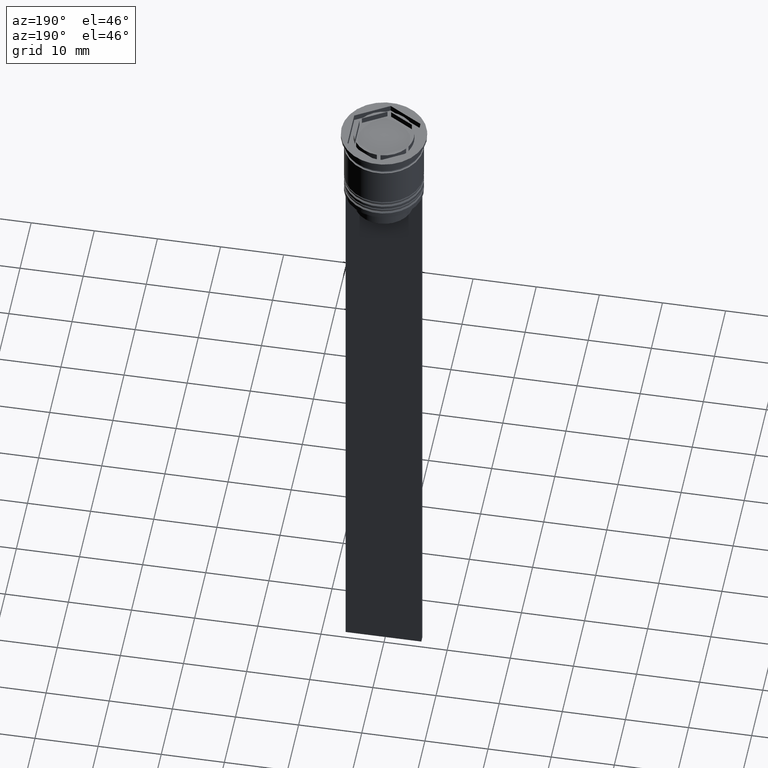
[diagram: clean part render]
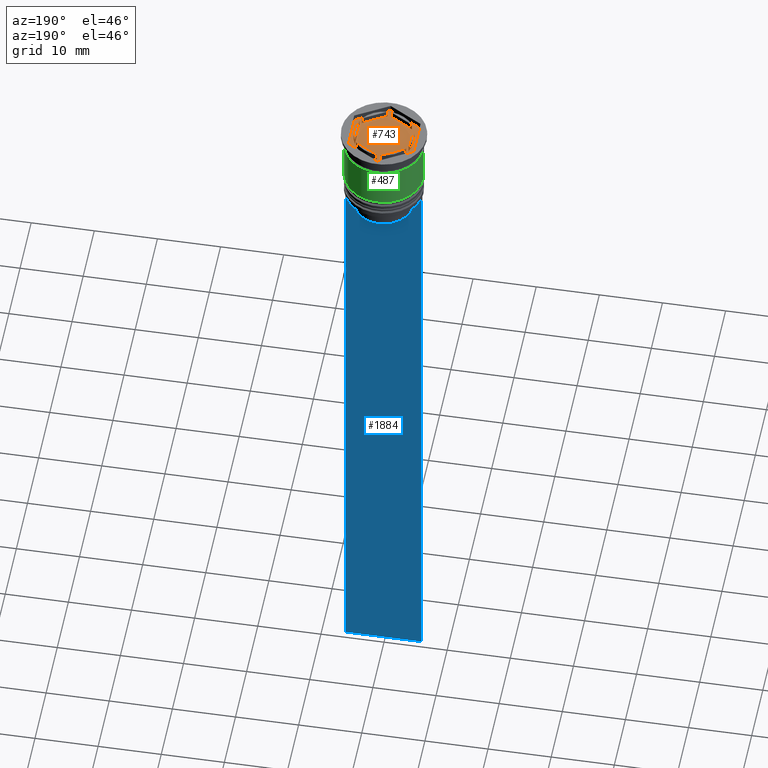
[diagram: same view with three faces highlighted in distinct colors, each labeled with its STEP entity id]
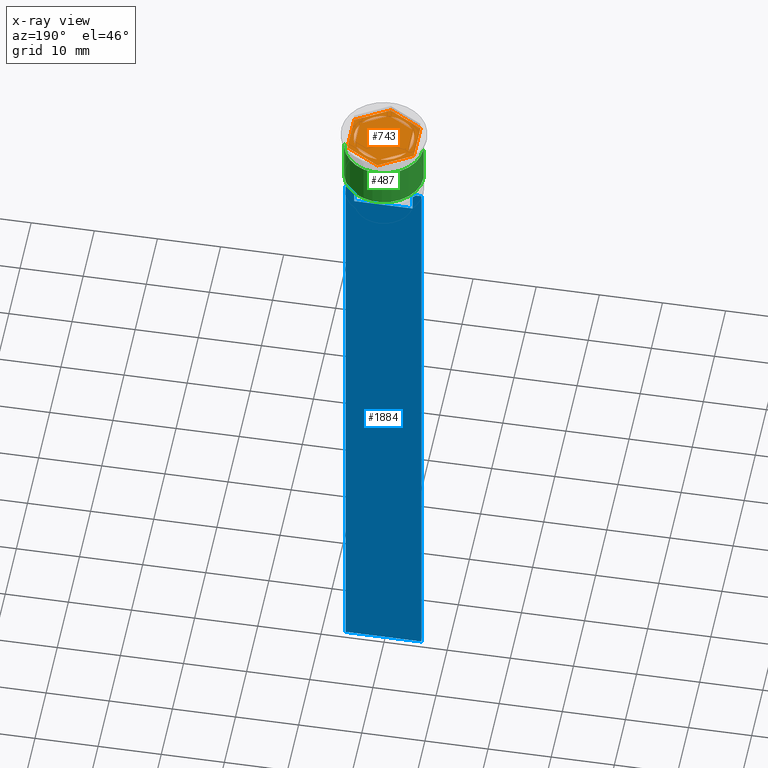
[diagram: x-ray of the same camera — body ghosted, the three highlighted faces saturated]
A machine part, auxiliary view with three faces highlighted in distinct colors.
The next image is the same camera in x-ray (body ghosted, the three faces saturated) — at least one of them is partly hidden behind the body in this view.
Their STEP definitions:

[orange] entity #743 — the highlighted planar face has unit normal (0, 0, 1).
#2 = CARTESIAN_POINT ( 'NONE',  ( -5.250000000000000888, -3.031088913245536087, -1.000000000000000000 ) ) ;
#6 = VERTEX_POINT ( 'NONE', #1836 ) ;
#8 = DIRECTION ( 'NONE',  ( 1.000000000000000000, 0.000000000000000000, 0.000000000000000000 ) ) ;
#10 = ORIENTED_EDGE ( 'NONE', *, *, #305, .F. ) ;
#28 = CARTESIAN_POINT ( 'NONE',  ( -0.2878826929126160894, 4.741268137863686505, -1.000000000000000888 ) ) ;
#33 = ORIENTED_EDGE ( 'NONE', *, *, #276, .T. ) ;
#39 = CARTESIAN_POINT ( 'NONE',  ( -4.750000000000000888, 0.000000000000000000, -1.000000000000000000 ) ) ;
#50 = CARTESIAN_POINT ( 'NONE',  ( 8.729740977282959667E-16, -6.062177826491071286, -1.000000000000000000 ) ) ;
#74 = ORIENTED_EDGE ( 'NONE', *, *, #1596, .F. ) ;
#94 = DIRECTION ( 'NONE',  ( 1.000000000000000000, 0.000000000000000000, -0.000000000000000000 ) ) ;
#104 = CARTESIAN_POINT ( 'NONE',  ( 0.2878826929126145906, 4.741268137863685617, -1.000000000000000888 ) ) ;
#116 = ORIENTED_EDGE ( 'NONE', *, *, #390, .F. ) ;
#151 = DIRECTION ( 'NONE',  ( 1.000000000000000000, 0.000000000000000000, 0.000000000000000000 ) ) ;
#156 = EDGE_LOOP ( 'NONE', ( #116, #670 ) ) ;
#168 = DIRECTION ( 'NONE',  ( 0.000000000000000000, 0.000000000000000000, 1.000000000000000000 ) ) ;
#169 = EDGE_CURVE ( 'NONE', #2283, #853, #262, .T. ) ;
#185 = VERTEX_POINT ( 'NONE', #605 ) ;
#223 = CARTESIAN_POINT ( 'NONE',  ( 0.2878826929126150347, -4.741268137863686505, -1.000000000000000888 ) ) ;
#225 = LINE ( 'NONE', #1520, #771 ) ;
#227 = EDGE_CURVE ( 'NONE', #1242, #608, #2251, .T. ) ;
#237 = VERTEX_POINT ( 'NONE', #1316 ) ;
#245 = AXIS2_PLACEMENT_3D ( 'NONE', #363, #1620, #8 ) ;
#262 = LINE ( 'NONE', #1848, #1671 ) ;
#276 = EDGE_CURVE ( 'NONE', #1228, #1242, #1177, .T. ) ;
#284 = VECTOR ( 'NONE', #1850, 1000.000000000000000 ) ;
#297 = ORIENTED_EDGE ( 'NONE', *, *, #831, .F. ) ;
#305 = EDGE_CURVE ( 'NONE', #2054, #237, #986, .T. ) ;
#310 = LINE ( 'NONE', #797, #772 ) ;
#325 = DIRECTION ( 'NONE',  ( 0.000000000000000000, 0.000000000000000000, 1.000000000000000000 ) ) ;
#331 = AXIS2_PLACEMENT_3D ( 'NONE', #1903, #325, #94 ) ;
#341 = CARTESIAN_POINT ( 'NONE',  ( 0.000000000000000000, 0.000000000000000000, -1.000000000000000000 ) ) ;
#351 = CARTESIAN_POINT ( 'NONE',  ( -3.962117307087385409, -2.619947794304041899, -1.000000000000000888 ) ) ;
#356 = EDGE_LOOP ( 'NONE', ( #1293, #1164 ) ) ;
#358 = ORIENTED_EDGE ( 'NONE', *, *, #2208, .F. ) ;
#363 = CARTESIAN_POINT ( 'NONE',  ( 0.000000000000000000, 0.000000000000000000, -1.000000000000000000 ) ) ;
#365 = EDGE_LOOP ( 'NONE', ( #1024, #1579, #10 ) ) ;
#372 = VECTOR ( 'NONE', #1816, 1000.000000000000000 ) ;
#375 = CARTESIAN_POINT ( 'NONE',  ( 3.962117307087384521, -2.619947794304042787, -1.000000000000000888 ) ) ;
#390 = EDGE_CURVE ( 'NONE', #1962, #1789, #841, .T. ) ;
#424 = CARTESIAN_POINT ( 'NONE',  ( 0.000000000000000000, 6.062177826491072175, -1.000000000000000000 ) ) ;
#460 = PLANE ( 'NONE',  #331 ) ;
#488 = DIRECTION ( 'NONE',  ( 1.000000000000000000, 0.000000000000000000, 0.000000000000000000 ) ) ;
#493 = VERTEX_POINT ( 'NONE', #375 ) ;
#494 = LINE ( 'NONE', #1178, #1990 ) ;
#499 = DIRECTION ( 'NONE',  ( 0.000000000000000000, 0.000000000000000000, 1.000000000000000000 ) ) ;
#500 = FACE_BOUND ( 'NONE', #156, .T. ) ;
#562 = CIRCLE ( 'NONE', #1997, 4.750000000000000888 ) ;
#592 = LINE ( 'NONE', #1115, #1720 ) ;
#605 = CARTESIAN_POINT ( 'NONE',  ( -3.962117307087385409, 2.619947794304041899, -1.000000000000000888 ) ) ;
#607 = CARTESIAN_POINT ( 'NONE',  ( -4.250000000000000000, 2.121320343559643717, -1.000000000000000888 ) ) ;
#608 = VERTEX_POINT ( 'NONE', #1650 ) ;
#621 = VECTOR ( 'NONE', #1749, 1000.000000000000000 ) ;
#636 = LINE ( 'NONE', #1515, #1107 ) ;
#660 = DIRECTION ( 'NONE',  ( -0.8660254037844387076, -0.4999999999999999445, 0.000000000000000000 ) ) ;
#667 = DIRECTION ( 'NONE',  ( 1.000000000000000000, 0.000000000000000000, 0.000000000000000000 ) ) ;
#670 = ORIENTED_EDGE ( 'NONE', *, *, #1204, .F. ) ;
#680 = FACE_OUTER_BOUND ( 'NONE', #1057, .T. ) ;
#690 = DIRECTION ( 'NONE',  ( 1.000000000000000000, 0.000000000000000000, 0.000000000000000000 ) ) ;
#701 = ORIENTED_EDGE ( 'NONE', *, *, #169, .F. ) ;
#708 = ORIENTED_EDGE ( 'NONE', *, *, #1011, .F. ) ;
#717 = DIRECTION ( 'NONE',  ( 1.000000000000000000, 0.000000000000000000, 0.000000000000000000 ) ) ;
#743 = ADVANCED_FACE ( 'NONE', ( #500, #1193, #2089, #1032, #1944, #1923, #680 ), #460, .T. ) ;
#762 = DIRECTION ( 'NONE',  ( 0.8660254037844385966, 0.4999999999999999445, 0.000000000000000000 ) ) ;
#768 = AXIS2_PLACEMENT_3D ( 'NONE', #1398, #1205, #808 ) ;
#770 = VERTEX_POINT ( 'NONE', #2303 ) ;
#771 = VECTOR ( 'NONE', #1321, 1000.000000000000000 ) ;
#772 = VECTOR ( 'NONE', #1530, 1000.000000000000227 ) ;
#777 = DIRECTION ( 'NONE',  ( -0.8660254037844385966, 0.5000000000000001110, 0.000000000000000000 ) ) ;
#797 = CARTESIAN_POINT ( 'NONE',  ( 5.250000000000000888, 3.031088913245536087, -1.000000000000000000 ) ) ;
#808 = DIRECTION ( 'NONE',  ( 1.000000000000000000, 0.000000000000000000, 0.000000000000000000 ) ) ;
#811 = ORIENTED_EDGE ( 'NONE', *, *, #1173, .T. ) ;
#831 = EDGE_CURVE ( 'NONE', #853, #2283, #1957, .T. ) ;
#841 = CIRCLE ( 'NONE', #1187, 4.750000000000000888 ) ;
#846 = CARTESIAN_POINT ( 'NONE',  ( 3.962117307087384521, 2.619947794304043232, -1.000000000000000888 ) ) ;
#851 = CARTESIAN_POINT ( 'NONE',  ( 8.729740977282959667E-16, -6.062177826491071286, -1.000000000000000000 ) ) ;
#853 = VERTEX_POINT ( 'NONE', #351 ) ;
#867 = EDGE_CURVE ( 'NONE', #1068, #493, #1715, .T. ) ;
#902 = CARTESIAN_POINT ( 'NONE',  ( 4.336808689942017736E-16, 4.907477288111819824, -1.000000000000000888 ) ) ;
#919 = LINE ( 'NONE', #1132, #1960 ) ;
#959 = EDGE_CURVE ( 'NONE', #1771, #1228, #919, .T. ) ;
#971 = CARTESIAN_POINT ( 'NONE',  ( 0.000000000000000000, 6.062177826491072175, -1.000000000000000000 ) ) ;
#986 = CIRCLE ( 'NONE', #768, 4.750000000000000888 ) ;
#1011 = EDGE_CURVE ( 'NONE', #770, #1340, #592, .T. ) ;
#1024 = ORIENTED_EDGE ( 'NONE', *, *, #1752, .F. ) ;
#1031 = CARTESIAN_POINT ( 'NONE',  ( 0.000000000000000000, 0.000000000000000000, -1.000000000000000000 ) ) ;
#1032 = FACE_BOUND ( 'NONE', #1105, .T. ) ;
#1057 = EDGE_LOOP ( 'NONE', ( #811, #1226, #1694, #33, #1368, #2324 ) ) ;
#1068 = VERTEX_POINT ( 'NONE', #223 ) ;
#1070 = CARTESIAN_POINT ( 'NONE',  ( 0.000000000000000000, 0.000000000000000000, -1.000000000000000000 ) ) ;
#1076 = VECTOR ( 'NONE', #762, 1000.000000000000114 ) ;
#1105 = EDGE_LOOP ( 'NONE', ( #297, #701 ) ) ;
#1107 = VECTOR ( 'NONE', #660, 1000.000000000000000 ) ;
#1115 = CARTESIAN_POINT ( 'NONE',  ( 4.249999999999999112, -2.453738644055910356, -1.000000000000000888 ) ) ;
#1132 = CARTESIAN_POINT ( 'NONE',  ( -5.250000000000000888, 3.031088913245535643, -1.000000000000000000 ) ) ;
#1164 = ORIENTED_EDGE ( 'NONE', *, *, #1424, .F. ) ;
#1173 = EDGE_CURVE ( 'NONE', #6, #2138, #310, .T. ) ;
#1177 = LINE ( 'NONE', #1360, #621 ) ;
#1178 = CARTESIAN_POINT ( 'NONE',  ( -4.250000000000000000, 2.453738644055909468, -1.000000000000000888 ) ) ;
#1187 = AXIS2_PLACEMENT_3D ( 'NONE', #1946, #1767, #151 ) ;
#1193 = FACE_BOUND ( 'NONE', #1793, .T. ) ;
#1195 = AXIS2_PLACEMENT_3D ( 'NONE', #1215, #1394, #667 ) ;
#1204 = EDGE_CURVE ( 'NONE', #1789, #1962, #1224, .T. ) ;
#1205 = DIRECTION ( 'NONE',  ( 0.000000000000000000, 0.000000000000000000, 1.000000000000000000 ) ) ;
#1215 = CARTESIAN_POINT ( 'NONE',  ( 0.000000000000000000, 0.000000000000000000, -1.000000000000000000 ) ) ;
#1224 = LINE ( 'NONE', #1414, #372 ) ;
#1226 = ORIENTED_EDGE ( 'NONE', *, *, #1511, .T. ) ;
#1228 = VERTEX_POINT ( 'NONE', #2 ) ;
#1242 = VERTEX_POINT ( 'NONE', #851 ) ;
#1293 = ORIENTED_EDGE ( 'NONE', *, *, #2237, .F. ) ;
#1316 = CARTESIAN_POINT ( 'NONE',  ( -4.250000000000000000, -2.121320343559643717, -1.000000000000000888 ) ) ;
#1321 = DIRECTION ( 'NONE',  ( 0.000000000000000000, 1.000000000000000000, 0.000000000000000000 ) ) ;
#1337 = LINE ( 'NONE', #971, #1525 ) ;
#1340 = VERTEX_POINT ( 'NONE', #2172 ) ;
#1346 = CIRCLE ( 'NONE', #1195, 4.750000000000000888 ) ;
#1360 = CARTESIAN_POINT ( 'NONE',  ( -5.250000000000000888, -3.031088913245536087, -1.000000000000000000 ) ) ;
#1368 = ORIENTED_EDGE ( 'NONE', *, *, #227, .T. ) ;
#1394 = DIRECTION ( 'NONE',  ( 0.000000000000000000, 0.000000000000000000, 1.000000000000000000 ) ) ;
#1398 = CARTESIAN_POINT ( 'NONE',  ( 0.000000000000000000, 0.000000000000000000, -1.000000000000000000 ) ) ;
#1414 = CARTESIAN_POINT ( 'NONE',  ( 4.250000000000000000, 2.453738644055910800, -1.000000000000000888 ) ) ;
#1424 = EDGE_CURVE ( 'NONE', #185, #1942, #1497, .T. ) ;
#1456 = VERTEX_POINT ( 'NONE', #607 ) ;
#1457 = CIRCLE ( 'NONE', #245, 4.750000000000000888 ) ;
#1497 = LINE ( 'NONE', #902, #284 ) ;
#1511 = EDGE_CURVE ( 'NONE', #2138, #1771, #1337, .T. ) ;
#1515 = CARTESIAN_POINT ( 'NONE',  ( -8.673617379884035472E-16, -4.907477288111819824, -1.000000000000000888 ) ) ;
#1519 = EDGE_CURVE ( 'NONE', #237, #1456, #494, .T. ) ;
#1520 = CARTESIAN_POINT ( 'NONE',  ( 5.250000000000000888, -3.031088913245536087, -1.000000000000000000 ) ) ;
#1525 = VECTOR ( 'NONE', #1541, 1000.000000000000227 ) ;
#1530 = DIRECTION ( 'NONE',  ( -0.8660254037844385966, 0.4999999999999998890, 0.000000000000000000 ) ) ;
#1532 = ORIENTED_EDGE ( 'NONE', *, *, #867, .F. ) ;
#1541 = DIRECTION ( 'NONE',  ( -0.8660254037844385966, -0.5000000000000000000, 0.000000000000000000 ) ) ;
#1579 = ORIENTED_EDGE ( 'NONE', *, *, #1519, .F. ) ;
#1596 = EDGE_CURVE ( 'NONE', #493, #1068, #636, .T. ) ;
#1618 = DIRECTION ( 'NONE',  ( 0.000000000000000000, 0.000000000000000000, 1.000000000000000000 ) ) ;
#1620 = DIRECTION ( 'NONE',  ( 0.000000000000000000, 0.000000000000000000, 1.000000000000000000 ) ) ;
#1625 = EDGE_LOOP ( 'NONE', ( #1532, #74 ) ) ;
#1650 = CARTESIAN_POINT ( 'NONE',  ( 5.250000000000000888, -3.031088913245536087, -1.000000000000000000 ) ) ;
#1665 = DIRECTION ( 'NONE',  ( -1.767428939690775055E-16, -1.000000000000000000, 0.000000000000000000 ) ) ;
#1671 = VECTOR ( 'NONE', #777, 1000.000000000000000 ) ;
#1694 = ORIENTED_EDGE ( 'NONE', *, *, #959, .T. ) ;
#1715 = CIRCLE ( 'NONE', #2220, 4.750000000000000888 ) ;
#1720 = VECTOR ( 'NONE', #1665, 1000.000000000000000 ) ;
#1749 = DIRECTION ( 'NONE',  ( 0.8660254037844387076, -0.4999999999999998335, 0.000000000000000000 ) ) ;
#1752 = EDGE_CURVE ( 'NONE', #1456, #2054, #1457, .T. ) ;
#1767 = DIRECTION ( 'NONE',  ( 0.000000000000000000, 0.000000000000000000, 1.000000000000000000 ) ) ;
#1771 = VERTEX_POINT ( 'NONE', #2004 ) ;
#1789 = VERTEX_POINT ( 'NONE', #104 ) ;
#1793 = EDGE_LOOP ( 'NONE', ( #358, #708 ) ) ;
#1816 = DIRECTION ( 'NONE',  ( 0.8660254037844387076, -0.4999999999999998335, 0.000000000000000000 ) ) ;
#1836 = CARTESIAN_POINT ( 'NONE',  ( 5.250000000000000888, 3.031088913245536087, -1.000000000000000000 ) ) ;
#1848 = CARTESIAN_POINT ( 'NONE',  ( -4.250000000000000000, -2.453738644055909912, -1.000000000000000888 ) ) ;
#1850 = DIRECTION ( 'NONE',  ( 0.8660254037844385966, 0.5000000000000001110, -0.000000000000000000 ) ) ;
#1875 = DIRECTION ( 'NONE',  ( 0.000000000000000000, 1.000000000000000000, 0.000000000000000000 ) ) ;
#1879 = DIRECTION ( 'NONE',  ( 0.000000000000000000, -1.000000000000000000, 0.000000000000000000 ) ) ;
#1903 = CARTESIAN_POINT ( 'NONE',  ( 0.000000000000000000, 0.000000000000000000, -1.000000000000000000 ) ) ;
#1923 = FACE_BOUND ( 'NONE', #356, .T. ) ;
#1942 = VERTEX_POINT ( 'NONE', #28 ) ;
#1944 = FACE_BOUND ( 'NONE', #365, .T. ) ;
#1946 = CARTESIAN_POINT ( 'NONE',  ( 0.000000000000000000, 0.000000000000000000, -1.000000000000000000 ) ) ;
#1957 = CIRCLE ( 'NONE', #2147, 4.750000000000000888 ) ;
#1958 = CARTESIAN_POINT ( 'NONE',  ( -0.2878826929126160894, -4.741268137863686505, -1.000000000000000888 ) ) ;
#1960 = VECTOR ( 'NONE', #1879, 1000.000000000000000 ) ;
#1962 = VERTEX_POINT ( 'NONE', #846 ) ;
#1990 = VECTOR ( 'NONE', #1875, 1000.000000000000000 ) ;
#1997 = AXIS2_PLACEMENT_3D ( 'NONE', #1031, #499, #488 ) ;
#2004 = CARTESIAN_POINT ( 'NONE',  ( -5.250000000000000888, 3.031088913245535643, -1.000000000000000000 ) ) ;
#2054 = VERTEX_POINT ( 'NONE', #39 ) ;
#2089 = FACE_BOUND ( 'NONE', #1625, .T. ) ;
#2122 = EDGE_CURVE ( 'NONE', #608, #6, #225, .T. ) ;
#2138 = VERTEX_POINT ( 'NONE', #424 ) ;
#2147 = AXIS2_PLACEMENT_3D ( 'NONE', #341, #1618, #717 ) ;
#2172 = CARTESIAN_POINT ( 'NONE',  ( 4.249999999999999112, -2.121320343559645938, -1.000000000000000888 ) ) ;
#2208 = EDGE_CURVE ( 'NONE', #1340, #770, #1346, .T. ) ;
#2220 = AXIS2_PLACEMENT_3D ( 'NONE', #1070, #168, #690 ) ;
#2237 = EDGE_CURVE ( 'NONE', #1942, #185, #562, .T. ) ;
#2251 = LINE ( 'NONE', #50, #1076 ) ;
#2283 = VERTEX_POINT ( 'NONE', #1958 ) ;
#2303 = CARTESIAN_POINT ( 'NONE',  ( 4.249999999999999112, 2.121320343559644162, -1.000000000000000888 ) ) ;
#2324 = ORIENTED_EDGE ( 'NONE', *, *, #2122, .T. ) ;

[blue] entity #1884 — the highlighted planar face has unit normal (0, -1, -0).
#184 = CARTESIAN_POINT ( 'NONE',  ( -4.623040125285526436, 0.4999999999999982792, 0.000000000000000000 ) ) ;
#193 = LINE ( 'NONE', #1630, #1570 ) ;
#219 = VERTEX_POINT ( 'NONE', #1867 ) ;
#221 = DIRECTION ( 'NONE',  ( 0.000000000000000000, 0.000000000000000000, -1.000000000000000000 ) ) ;
#267 = CARTESIAN_POINT ( 'NONE',  ( -4.623040125285526436, 0.4999999999999982792, -13.00000000000000178 ) ) ;
#388 = VERTEX_POINT ( 'NONE', #1217 ) ;
#397 = EDGE_LOOP ( 'NONE', ( #1429, #1180, #1554, #1824, #1654, #753, #543, #1044, #746, #2174 ) ) ;
#456 = EDGE_CURVE ( 'NONE', #388, #1518, #1086, .T. ) ;
#457 = DIRECTION ( 'NONE',  ( 0.000000000000000000, -1.000000000000000000, -0.000000000000000000 ) ) ;
#543 = ORIENTED_EDGE ( 'NONE', *, *, #1947, .T. ) ;
#576 = LINE ( 'NONE', #1207, #880 ) ;
#618 = CARTESIAN_POINT ( 'NONE',  ( 5.125670687822231564, 0.4999999999999982792, -12.50000000000000000 ) ) ;
#620 = VECTOR ( 'NONE', #221, 1000.000000000000000 ) ;
#623 = B_SPLINE_CURVE_WITH_KNOTS ( 'NONE', 3,
 ( #833, #663, #1148, #267 ),
 .UNSPECIFIED., .F., .F.,
 ( 4, 4 ),
 ( 0.008759809102772707357, 0.009468778395565351919 ),
 .UNSPECIFIED. ) ;
#637 = EDGE_CURVE ( 'NONE', #1973, #1921, #1331, .T. ) ;
#642 = CARTESIAN_POINT ( 'NONE',  ( 6.000000000000016875, 0.4999999999999982792, -12.50000000000000000 ) ) ;
#647 = LINE ( 'NONE', #1731, #2290 ) ;
#663 = CARTESIAN_POINT ( 'NONE',  ( -4.958169823806762189, 0.4999999999999982792, -12.66670956677067750 ) ) ;
#686 = VERTEX_POINT ( 'NONE', #642 ) ;
#730 = DIRECTION ( 'NONE',  ( 1.000000000000000000, 0.000000000000000000, 0.000000000000000000 ) ) ;
#734 = VECTOR ( 'NONE', #2281, 1000.000000000000000 ) ;
#742 = DIRECTION ( 'NONE',  ( 0.000000000000000000, 0.000000000000000000, -1.000000000000000000 ) ) ;
#746 = ORIENTED_EDGE ( 'NONE', *, *, #1470, .T. ) ;
#753 = ORIENTED_EDGE ( 'NONE', *, *, #637, .T. ) ;
#779 = LINE ( 'NONE', #1130, #620 ) ;
#823 = DIRECTION ( 'NONE',  ( 1.000000000000000000, 0.000000000000000000, 0.000000000000000000 ) ) ;
#833 = CARTESIAN_POINT ( 'NONE',  ( -5.125670687822231564, 0.4999999999999982792, -12.50000000000000000 ) ) ;
#863 = VERTEX_POINT ( 'NONE', #2323 ) ;
#878 = VECTOR ( 'NONE', #1703, 1000.000000000000000 ) ;
#880 = VECTOR ( 'NONE', #1452, 1000.000000000000000 ) ;
#969 = VERTEX_POINT ( 'NONE', #1853 ) ;
#1002 = CARTESIAN_POINT ( 'NONE',  ( 4.623040125285526436, 0.4999999999999982792, 0.000000000000000000 ) ) ;
#1044 = ORIENTED_EDGE ( 'NONE', *, *, #1385, .T. ) ;
#1086 = LINE ( 'NONE', #184, #2142 ) ;
#1098 = LINE ( 'NONE', #1823, #1231 ) ;
#1130 = CARTESIAN_POINT ( 'NONE',  ( 6.000000000000016875, 0.4999999999999982792, -0.4584054212077061097 ) ) ;
#1148 = CARTESIAN_POINT ( 'NONE',  ( -4.790630915080666519, 0.4999999999999982792, -12.83338087185995313 ) ) ;
#1180 = ORIENTED_EDGE ( 'NONE', *, *, #1904, .T. ) ;
#1207 = CARTESIAN_POINT ( 'NONE',  ( 6.000000000000016875, 0.4999999999999982792, -12.50000000000000000 ) ) ;
#1217 = CARTESIAN_POINT ( 'NONE',  ( -4.623040125285526436, 0.4999999999999982792, -13.00000000000000178 ) ) ;
#1231 = VECTOR ( 'NONE', #1295, 1000.000000000000000 ) ;
#1295 = DIRECTION ( 'NONE',  ( -1.000000000000000000, 0.000000000000000000, 0.000000000000000000 ) ) ;
#1331 = B_SPLINE_CURVE_WITH_KNOTS ( 'NONE', 3,
 ( #1881, #1856, #1862, #1350 ),
 .UNSPECIFIED., .F., .F.,
 ( 4, 4 ),
 ( 0.02203698174624552433, 0.02275222543365896036 ),
 .UNSPECIFIED. ) ;
#1350 = CARTESIAN_POINT ( 'NONE',  ( 5.125670687822231564, 0.4999999999999982792, -12.50000000000000000 ) ) ;
#1354 = LINE ( 'NONE', #2277, #878 ) ;
#1366 = LINE ( 'NONE', #1002, #734 ) ;
#1385 = EDGE_CURVE ( 'NONE', #686, #863, #779, .T. ) ;
#1391 = CARTESIAN_POINT ( 'NONE',  ( -5.999999999999983125, 0.4999999999999982792, -112.5000000000000000 ) ) ;
#1409 = CARTESIAN_POINT ( 'NONE',  ( 4.623040125285526436, 0.4999999999999982792, -13.00000000000000178 ) ) ;
#1429 = ORIENTED_EDGE ( 'NONE', *, *, #1857, .T. ) ;
#1452 = DIRECTION ( 'NONE',  ( 1.000000000000000000, 0.000000000000000000, 0.000000000000000000 ) ) ;
#1470 = EDGE_CURVE ( 'NONE', #863, #1811, #1098, .T. ) ;
#1516 = DIRECTION ( 'NONE',  ( 0.000000000000000000, 0.000000000000000000, -1.000000000000000000 ) ) ;
#1518 = VERTEX_POINT ( 'NONE', #2091 ) ;
#1529 = FACE_OUTER_BOUND ( 'NONE', #397, .T. ) ;
#1554 = ORIENTED_EDGE ( 'NONE', *, *, #456, .T. ) ;
#1563 = EDGE_CURVE ( 'NONE', #2320, #1811, #1354, .T. ) ;
#1570 = VECTOR ( 'NONE', #730, 1000.000000000000000 ) ;
#1630 = CARTESIAN_POINT ( 'NONE',  ( 0.000000000000000000, 0.4999999999999987232, -15.50000000000000000 ) ) ;
#1654 = ORIENTED_EDGE ( 'NONE', *, *, #1801, .T. ) ;
#1703 = DIRECTION ( 'NONE',  ( 0.000000000000000000, 0.000000000000000000, -1.000000000000000000 ) ) ;
#1717 = PLANE ( 'NONE',  #1911 ) ;
#1731 = CARTESIAN_POINT ( 'NONE',  ( 6.000000000000016875, 0.4999999999999982792, -12.50000000000000000 ) ) ;
#1777 = EDGE_CURVE ( 'NONE', #1518, #219, #193, .T. ) ;
#1801 = EDGE_CURVE ( 'NONE', #219, #1973, #1366, .T. ) ;
#1811 = VERTEX_POINT ( 'NONE', #1391 ) ;
#1823 = CARTESIAN_POINT ( 'NONE',  ( 6.000000000000016875, 0.4999999999999982792, -112.5000000000000000 ) ) ;
#1824 = ORIENTED_EDGE ( 'NONE', *, *, #1777, .T. ) ;
#1853 = CARTESIAN_POINT ( 'NONE',  ( -5.125670687822231564, 0.4999999999999982792, -12.50000000000000000 ) ) ;
#1856 = CARTESIAN_POINT ( 'NONE',  ( 4.790630799407576745, 0.4999999999999982792, -12.83338098686239093 ) ) ;
#1857 = EDGE_CURVE ( 'NONE', #2320, #969, #647, .T. ) ;
#1862 = CARTESIAN_POINT ( 'NONE',  ( 4.958169719475987058, 0.4999999999999982792, -12.66670967060858111 ) ) ;
#1867 = CARTESIAN_POINT ( 'NONE',  ( 4.623040125285526436, 0.4999999999999987232, -15.50000000000000000 ) ) ;
#1881 = CARTESIAN_POINT ( 'NONE',  ( 4.623040125285526436, 0.4999999999999982792, -13.00000000000000178 ) ) ;
#1884 = ADVANCED_FACE ( 'NONE', ( #1529 ), #1717, .F. ) ;
#1904 = EDGE_CURVE ( 'NONE', #969, #388, #623, .T. ) ;
#1911 = AXIS2_PLACEMENT_3D ( 'NONE', #2109, #457, #1516 ) ;
#1921 = VERTEX_POINT ( 'NONE', #618 ) ;
#1922 = CARTESIAN_POINT ( 'NONE',  ( -5.999999999999983125, 0.4999999999999985012, -12.50000000000000000 ) ) ;
#1947 = EDGE_CURVE ( 'NONE', #1921, #686, #576, .T. ) ;
#1973 = VERTEX_POINT ( 'NONE', #1409 ) ;
#2091 = CARTESIAN_POINT ( 'NONE',  ( -4.623040125285526436, 0.4999999999999987232, -15.50000000000000000 ) ) ;
#2109 = CARTESIAN_POINT ( 'NONE',  ( 6.000000000000016875, 0.4999999999999982792, -0.4584054212077061097 ) ) ;
#2142 = VECTOR ( 'NONE', #742, 1000.000000000000000 ) ;
#2174 = ORIENTED_EDGE ( 'NONE', *, *, #1563, .F. ) ;
#2277 = CARTESIAN_POINT ( 'NONE',  ( -5.999999999999983125, 0.4999999999999982792, -0.4584054212077061097 ) ) ;
#2281 = DIRECTION ( 'NONE',  ( -0.000000000000000000, -0.000000000000000000, 1.000000000000000000 ) ) ;
#2290 = VECTOR ( 'NONE', #823, 1000.000000000000000 ) ;
#2320 = VERTEX_POINT ( 'NONE', #1922 ) ;
#2323 = CARTESIAN_POINT ( 'NONE',  ( 6.000000000000016875, 0.4999999999999982792, -112.5000000000000000 ) ) ;

[green] entity #487 — the highlighted cylindrical surface (partial cylindrical patch) has radius 6.25 mm, axis along (-0, -0, 1).
#15 = DIRECTION ( 'NONE',  ( -0.000000000000000000, -0.000000000000000000, 1.000000000000000000 ) ) ;
#154 = VERTEX_POINT ( 'NONE', #2035 ) ;
#254 = EDGE_CURVE ( 'NONE', #259, #154, #1538, .T. ) ;
#259 = VERTEX_POINT ( 'NONE', #315 ) ;
#280 = CARTESIAN_POINT ( 'NONE',  ( -6.250000000000000000, 7.654042494670957606E-16, 0.000000000000000000 ) ) ;
#315 = CARTESIAN_POINT ( 'NONE',  ( 6.250000000000000888, 0.000000000000000000, -9.000000000000001776 ) ) ;
#385 = VERTEX_POINT ( 'NONE', #671 ) ;
#471 = EDGE_LOOP ( 'NONE', ( #1273, #2319, #678, #1716 ) ) ;
#473 = DIRECTION ( 'NONE',  ( -0.000000000000000000, -0.000000000000000000, 1.000000000000000000 ) ) ;
#487 = ADVANCED_FACE ( 'NONE', ( #577 ), #1285, .T. ) ;
#577 = FACE_OUTER_BOUND ( 'NONE', #471, .T. ) ;
#671 = CARTESIAN_POINT ( 'NONE',  ( -6.250000000000001776, 7.654042494670959579E-16, -9.000000000000001776 ) ) ;
#678 = ORIENTED_EDGE ( 'NONE', *, *, #1846, .F. ) ;
#695 = VECTOR ( 'NONE', #1726, 1000.000000000000000 ) ;
#727 = DIRECTION ( 'NONE',  ( 1.000000000000000000, 0.000000000000000000, 0.000000000000000000 ) ) ;
#876 = CARTESIAN_POINT ( 'NONE',  ( 0.000000000000000000, 0.000000000000000000, 0.000000000000000000 ) ) ;
#949 = CIRCLE ( 'NONE', #2337, 6.250000000000000888 ) ;
#1034 = AXIS2_PLACEMENT_3D ( 'NONE', #1199, #2271, #1162 ) ;
#1094 = DIRECTION ( 'NONE',  ( 1.000000000000000000, 0.000000000000000000, 0.000000000000000000 ) ) ;
#1162 = DIRECTION ( 'NONE',  ( 1.000000000000000000, 0.000000000000000000, 0.000000000000000000 ) ) ;
#1199 = CARTESIAN_POINT ( 'NONE',  ( 0.000000000000000000, 0.000000000000000000, -2.500000000000000444 ) ) ;
#1271 = DIRECTION ( 'NONE',  ( -0.000000000000000000, -0.000000000000000000, 1.000000000000000000 ) ) ;
#1273 = ORIENTED_EDGE ( 'NONE', *, *, #2027, .T. ) ;
#1275 = VECTOR ( 'NONE', #473, 1000.000000000000000 ) ;
#1285 = CYLINDRICAL_SURFACE ( 'NONE', #2292, 6.250000000000000000 ) ;
#1507 = VERTEX_POINT ( 'NONE', #1885 ) ;
#1538 = LINE ( 'NONE', #1933, #695 ) ;
#1557 = LINE ( 'NONE', #280, #1275 ) ;
#1714 = CIRCLE ( 'NONE', #1034, 6.249999999999999112 ) ;
#1716 = ORIENTED_EDGE ( 'NONE', *, *, #254, .F. ) ;
#1726 = DIRECTION ( 'NONE',  ( -0.000000000000000000, -0.000000000000000000, 1.000000000000000000 ) ) ;
#1846 = EDGE_CURVE ( 'NONE', #154, #1507, #1714, .T. ) ;
#1885 = CARTESIAN_POINT ( 'NONE',  ( -6.249999999999999112, 7.654042494670956620E-16, -2.500000000000000444 ) ) ;
#1933 = CARTESIAN_POINT ( 'NONE',  ( 6.250000000000000000, 0.000000000000000000, 0.000000000000000000 ) ) ;
#1948 = CARTESIAN_POINT ( 'NONE',  ( 0.000000000000000000, 0.000000000000000000, -9.000000000000001776 ) ) ;
#2027 = EDGE_CURVE ( 'NONE', #259, #385, #949, .T. ) ;
#2035 = CARTESIAN_POINT ( 'NONE',  ( 6.249999999999999112, 0.000000000000000000, -2.500000000000000444 ) ) ;
#2254 = EDGE_CURVE ( 'NONE', #385, #1507, #1557, .T. ) ;
#2271 = DIRECTION ( 'NONE',  ( -0.000000000000000000, -0.000000000000000000, 1.000000000000000000 ) ) ;
#2292 = AXIS2_PLACEMENT_3D ( 'NONE', #876, #1271, #1094 ) ;
#2319 = ORIENTED_EDGE ( 'NONE', *, *, #2254, .T. ) ;
#2337 = AXIS2_PLACEMENT_3D ( 'NONE', #1948, #15, #727 ) ;